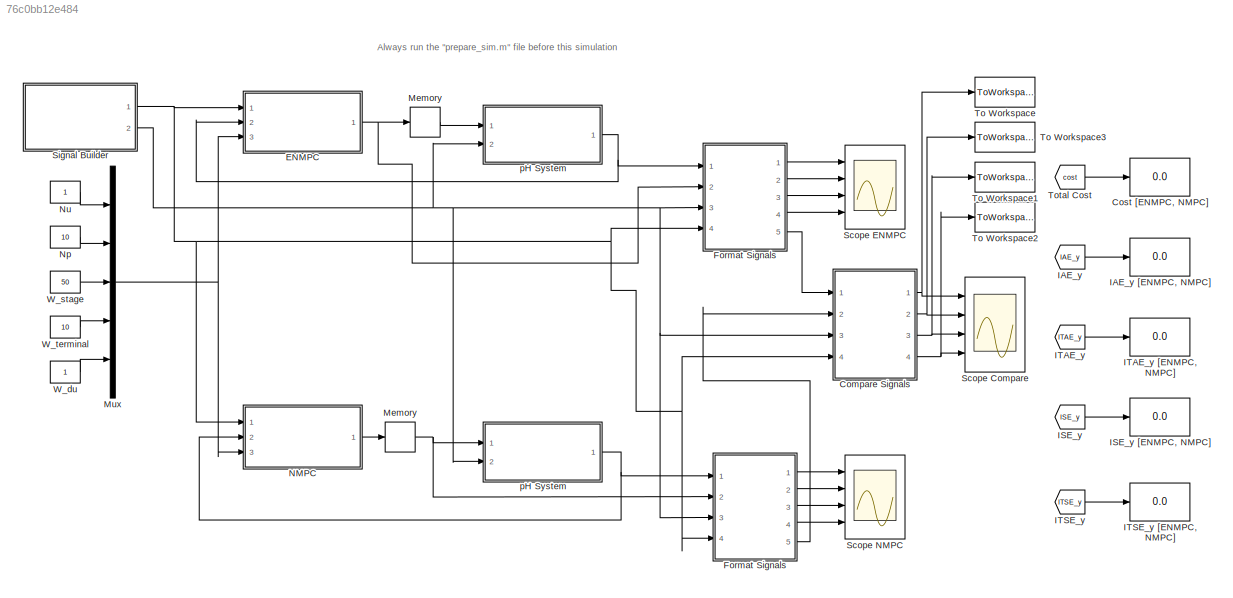
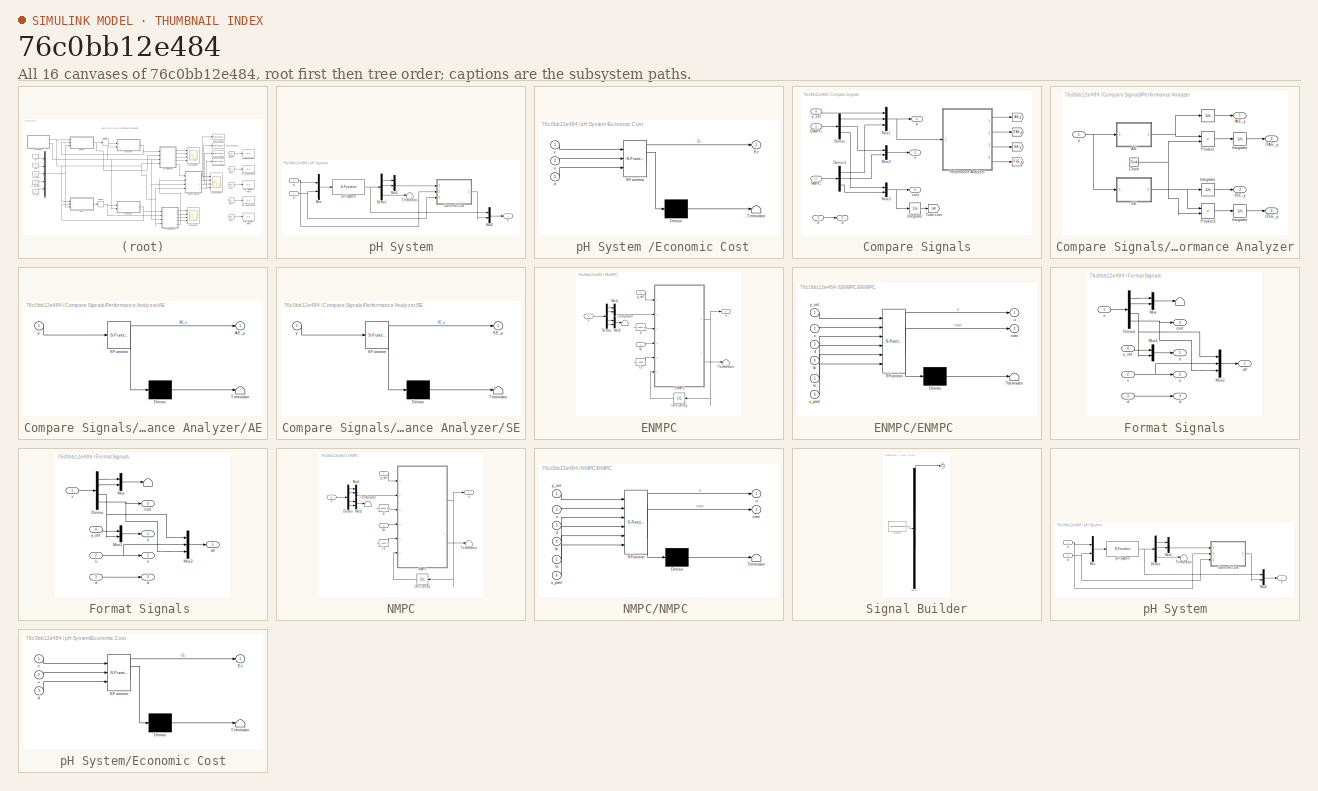
[diagram: thumbnail index - all 16 canvases of the model, root first then tree order]
MODEL slx_76c0bb12e484
KIND model
CONFIG AbsTol = auto
CONFIG EnableMultiTasking = off
CONFIG FixedStep = auto
CONFIG MaxStep = auto
CONFIG MinStep = auto
CONFIG RelTol = 1e-3
CONFIG SampleTimeConstraint = Unconstrained
CONFIG Solver = VariableStepAuto
CONFIG SolverName = VariableStepAuto
CONFIG StartTime = 0.0
CONFIG StopTime = 600
BLOCK [Display]  Cost [ENMPC, NMPC]
  Decimation = 1
  Ports = [1]
BLOCK [From]  IAE_y 
  GotoTag = IAE_y
  TagVisibility = global
BLOCK [From]  ISE_y
  GotoTag = ISE_y
  TagVisibility = global
BLOCK [From]  ITAE_y
  GotoTag = ITAE_y
  TagVisibility = global
BLOCK [From]  ITSE_y
  GotoTag = ITSE_y
  TagVisibility = global
BLOCK [Memory]  Memory 
  InitialCondition = pH_const.u_0
BLOCK [From]  Total Cost
  GotoTag = cost
  TagVisibility = global
BLOCK [SubSystem]  pH System 
  Ports = [2, 1]
  RequestExecContextInheritance = off
BLOCK [Demux]  pH System /Demux
  DisplayOption = bar
  Outputs = 3
  Ports = [1, 3]
BLOCK [SubSystem]  pH System /Economic Cost
  ErrorFcn = Stateflow.Translate.translate
  PermitHierarchicalResolution = ExplicitOnly
  Ports = [3, 1]
  RequestExecContextInheritance = off
  SFBlockType = MATLAB Function
  TreatAsAtomicUnit = on
BLOCK [Demux]  pH System /Economic Cost/ Demux 
  Outputs = 1
  Ports = [1, 1]
BLOCK [S-Function]  pH System /Economic Cost/ SFunction 
  EnableBusSupport = off
  FunctionName = sf_sfun
  PortCounts = [3 2]
  Ports = [3, 2]
  SFcnIsStateOwnerBlock = off
  SFunctionDeploymentMode = off
  Tag = Stateflow S-Function pH_control_loops 6
BLOCK [Terminator]  pH System /Economic Cost/ Terminator 
BLOCK [Outport]  pH System /Economic Cost/Ec
  IconDisplay = Port number
BLOCK [Inport]  pH System /Economic Cost/d
  IconDisplay = Port number
  Port = 3
BLOCK [Inport]  pH System /Economic Cost/u
  IconDisplay = Port number
  Port = 2
BLOCK [Inport]  pH System /Economic Cost/x
  IconDisplay = Port number
BLOCK [Mux]  pH System /Mux
  DisplayOption = bar
  Inputs = 2
  Ports = [2, 1]
BLOCK [Mux]  pH System /Mux1
  DisplayOption = bar
  Inputs = 2
  Ports = [2, 1]
BLOCK [Mux]  pH System /Mux2
  DisplayOption = bar
  Inputs = 2
  Ports = [2, 1]
BLOCK [Terminator]  pH System /Terminator
BLOCK [Inport]  pH System /d
  IconDisplay = Port number
  Port = 2
BLOCK [S-Function]  pH System /pH System
  EnableBusSupport = off
  FunctionName = pH_sfun
  Ports = [1, 1]
  SFcnIsStateOwnerBlock = off
  SFunctionDeploymentMode = off
BLOCK [Inport]  pH System /u
  IconDisplay = Port number
BLOCK [Outport]  pH System /x
  IconDisplay = Port number
BLOCK [SubSystem] Compare Signals
  Ports = [4, 4]
  RequestExecContextInheritance = off
BLOCK [Goto] Compare Signals/ 
  GotoTag = ITSE_y
  TagVisibility = global
BLOCK [Inport] Compare Signals/ d 
  IconDisplay = Port number
  Port = 3
BLOCK [Demux] Compare Signals/Demux
  DisplayOption = bar
  Outputs = 3
  Ports = [1, 3]
BLOCK [Demux] Compare Signals/Demux1
  DisplayOption = bar
  Outputs = 3
  Ports = [1, 3]
BLOCK [Inport] Compare Signals/ENMPC
  IconDisplay = Port number
BLOCK [Integrator] Compare Signals/Integrator
  Ports = [1, 1]
BLOCK [Mux] Compare Signals/Mux1
  DisplayOption = bar
  Inputs = 3
  Ports = [3, 1]
BLOCK [Mux] Compare Signals/Mux2
  DisplayOption = bar
  Inputs = 2
  Ports = [2, 1]
BLOCK [Mux] Compare Signals/Mux3
  DisplayOption = bar
  Inputs = 2
  Ports = [2, 1]
BLOCK [Inport] Compare Signals/NMPC
  IconDisplay = Port number
  Port = 2
BLOCK [SubSystem] Compare Signals/Performance Analyzer
  Ports = [1, 4]
  RequestExecContextInheritance = off
BLOCK [Integrator] Compare Signals/Performance Analyzer/   
  Ports = [1, 1]
BLOCK [Integrator] Compare Signals/Performance Analyzer/    Integrator    
  Ports = [1, 1]
BLOCK [Integrator] Compare Signals/Performance Analyzer/   Integrator 
  Ports = [1, 1]
BLOCK [Integrator] Compare Signals/Performance Analyzer/   Integrator  
  Ports = [1, 1]
BLOCK [SubSystem] Compare Signals/Performance Analyzer/AE
  ErrorFcn = Stateflow.Translate.translate
  PermitHierarchicalResolution = ExplicitOnly
  Ports = [1, 1]
  RequestExecContextInheritance = off
  SFBlockType = MATLAB Function
  SystemSampleTime = pH_const.ts
  TreatAsAtomicUnit = on
BLOCK [Demux] Compare Signals/Performance Analyzer/AE/ Demux 
  Outputs = 1
  Ports = [1, 1]
BLOCK [S-Function] Compare Signals/Performance Analyzer/AE/ SFunction 
  EnableBusSupport = off
  FunctionName = sf_sfun
  PortCounts = [1 2]
  Ports = [1, 2]
  SFcnIsStateOwnerBlock = off
  SFunctionDeploymentMode = off
  Tag = Stateflow S-Function pH_control_loops 1
BLOCK [Terminator] Compare Signals/Performance Analyzer/AE/ Terminator 
BLOCK [Outport] Compare Signals/Performance Analyzer/AE/AE_y
  IconDisplay = Port number
BLOCK [Inport] Compare Signals/Performance Analyzer/AE/y
  IconDisplay = Port number
BLOCK [Clock] Compare Signals/Performance Analyzer/Clock
BLOCK [Outport] Compare Signals/Performance Analyzer/IAE_y
  IconDisplay = Port number
BLOCK [Outport] Compare Signals/Performance Analyzer/ISE_y
  IconDisplay = Port number
  Port = 3
BLOCK [Outport] Compare Signals/Performance Analyzer/ITAE_y
  IconDisplay = Port number
  Port = 2
BLOCK [Outport] Compare Signals/Performance Analyzer/ITSE_y
  IconDisplay = Port number
  Port = 4
BLOCK [Product] Compare Signals/Performance Analyzer/Product
  InputSameDT = off
  OutDataTypeStr = Inherit: Inherit via internal rule
  Ports = [2, 1]
  RndMeth = Floor
  SaturateOnIntegerOverflow = off
BLOCK [Product] Compare Signals/Performance Analyzer/Product2
  InputSameDT = off
  OutDataTypeStr = Inherit: Inherit via internal rule
  Ports = [2, 1]
  RndMeth = Floor
  SaturateOnIntegerOverflow = off
BLOCK [SubSystem] Compare Signals/Performance Analyzer/SE
  ErrorFcn = Stateflow.Translate.translate
  PermitHierarchicalResolution = ExplicitOnly
  Ports = [1, 1]
  RequestExecContextInheritance = off
  SFBlockType = MATLAB Function
  SystemSampleTime = pH_const.ts
  TreatAsAtomicUnit = on
BLOCK [Demux] Compare Signals/Performance Analyzer/SE/ Demux 
  Outputs = 1
  Ports = [1, 1]
BLOCK [S-Function] Compare Signals/Performance Analyzer/SE/ SFunction 
  EnableBusSupport = off
  FunctionName = sf_sfun
  PortCounts = [1 2]
  Ports = [1, 2]
  SFcnIsStateOwnerBlock = off
  SFunctionDeploymentMode = off
  Tag = Stateflow S-Function pH_control_loops 3
BLOCK [Terminator] Compare Signals/Performance Analyzer/SE/ Terminator 
BLOCK [Outport] Compare Signals/Performance Analyzer/SE/SE_y
  IconDisplay = Port number
BLOCK [Inport] Compare Signals/Performance Analyzer/SE/y
  IconDisplay = Port number
BLOCK [Inport] Compare Signals/Performance Analyzer/y
  IconDisplay = Port number
BLOCK [Goto] Compare Signals/Total cost
  GotoTag = cost
  TagVisibility = global
BLOCK [Outport] Compare Signals/cost
  IconDisplay = Port number
  Port = 4
BLOCK [Outport] Compare Signals/d
  IconDisplay = Port number
  Port = 3
BLOCK [Outport] Compare Signals/u
  IconDisplay = Port number
  Port = 2
BLOCK [Outport] Compare Signals/y
  IconDisplay = Port number
BLOCK [Inport] Compare Signals/y_set
  IconDisplay = Port number
  Port = 4
BLOCK [SubSystem] ENMPC
  Ports = [3, 1]
  RequestExecContextInheritance = off
BLOCK [Demux] ENMPC/Demux
  DisplayOption = bar
  Ports = [1, 4]
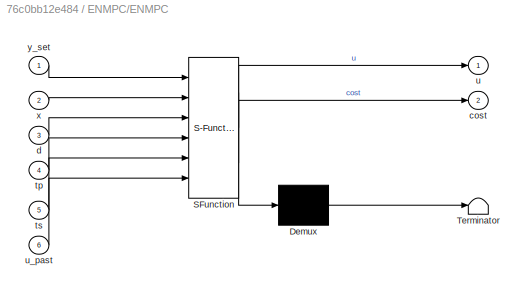
BLOCK [SubSystem] ENMPC/ENMPC 
  ErrorFcn = Stateflow.Translate.translate
  PermitHierarchicalResolution = ExplicitOnly
  Ports = [6, 2]
  RequestExecContextInheritance = off
  SFBlockType = MATLAB Function
  SystemSampleTime = pH_const.ts
  TreatAsAtomicUnit = on
BLOCK [Demux] ENMPC/ENMPC / Demux 
  Outputs = 1
  Ports = [1, 1]
BLOCK [S-Function] ENMPC/ENMPC / SFunction 
  EnableBusSupport = off
  FunctionName = sf_sfun
  PortCounts = [6 3]
  Ports = [6, 3]
  SFcnIsStateOwnerBlock = off
  SFunctionDeploymentMode = off
  Tag = Stateflow S-Function pH_control_loops 2
BLOCK [Terminator] ENMPC/ENMPC / Terminator 
BLOCK [Outport] ENMPC/ENMPC /cost
  IconDisplay = Port number
  Port = 2
BLOCK [Inport] ENMPC/ENMPC /d
  IconDisplay = Port number
  Port = 3
BLOCK [Inport] ENMPC/ENMPC /tp
  IconDisplay = Port number
  Port = 4
BLOCK [Inport] ENMPC/ENMPC /ts
  IconDisplay = Port number
  Port = 5
BLOCK [Outport] ENMPC/ENMPC /u
  IconDisplay = Port number
BLOCK [Inport] ENMPC/ENMPC /u_past
  IconDisplay = Port number
  Port = 6
BLOCK [Inport] ENMPC/ENMPC /x
  IconDisplay = Port number
  Port = 2
BLOCK [Inport] ENMPC/ENMPC /y_set
  IconDisplay = Port number
BLOCK [Mux] ENMPC/Mux1
  DisplayOption = bar
  Inputs = 2
  Ports = [2, 1]
BLOCK [Mux] ENMPC/Mux2
  DisplayOption = bar
  Inputs = 2
  Ports = [2, 1]
BLOCK [Terminator] ENMPC/Terminator
BLOCK [Terminator] ENMPC/Terminator 
BLOCK [Constant] ENMPC/Ts
  Value = pH_const.ts
BLOCK [UnitDelay] ENMPC/Unit Delay
  HasFrameUpgradeWarning = on
  InitialCondition = pH_const.u_0
  SampleTime = pH_const.ts
BLOCK [Constant] ENMPC/d
  Value = pH_const.d_0
BLOCK [Inport] ENMPC/tp
  IconDisplay = Port number
  Port = 3
BLOCK [Outport] ENMPC/u
  IconDisplay = Port number
BLOCK [Inport] ENMPC/x
  IconDisplay = Port number
  Port = 2
BLOCK [Inport] ENMPC/y_set
  IconDisplay = Port number
BLOCK [SubSystem] Format Signals
  Ports = [4, 5]
  RequestExecContextInheritance = off
BLOCK [SubSystem] Format Signals 
  Ports = [4, 5]
  RequestExecContextInheritance = off
BLOCK [Terminator] Format Signals /  
BLOCK [Inport] Format Signals / d 
  IconDisplay = Port number
  Port = 3
BLOCK [Inport] Format Signals / u 
  IconDisplay = Port number
  Port = 2
BLOCK [Demux] Format Signals /Demux
  DisplayOption = bar
  Ports = [1, 4]
BLOCK [Mux] Format Signals /Mux
  DisplayOption = bar
  Inputs = 2
  Ports = [2, 1]
BLOCK [Mux] Format Signals /Mux1
  DisplayOption = bar
  Inputs = 2
  Ports = [2, 1]
BLOCK [Mux] Format Signals /Mux2
  DisplayOption = bar
  Inputs = 3
  Ports = [3, 1]
BLOCK [Outport] Format Signals /all
  IconDisplay = Port number
  Port = 5
BLOCK [Outport] Format Signals /cost
  IconDisplay = Port number
  Port = 4
BLOCK [Outport] Format Signals /d
  IconDisplay = Port number
  Port = 3
BLOCK [Outport] Format Signals /u
  IconDisplay = Port number
  Port = 2
BLOCK [Inport] Format Signals /x
  IconDisplay = Port number
BLOCK [Outport] Format Signals /y
  IconDisplay = Port number
BLOCK [Inport] Format Signals /y_set
  IconDisplay = Port number
  Port = 4
BLOCK [Terminator] Format Signals/  
BLOCK [Inport] Format Signals/ d 
  IconDisplay = Port number
  Port = 3
BLOCK [Inport] Format Signals/ u 
  IconDisplay = Port number
  Port = 2
BLOCK [Demux] Format Signals/Demux
  DisplayOption = bar
  Ports = [1, 4]
BLOCK [Mux] Format Signals/Mux
  DisplayOption = bar
  Inputs = 2
  Ports = [2, 1]
BLOCK [Mux] Format Signals/Mux1
  DisplayOption = bar
  Inputs = 2
  Ports = [2, 1]
BLOCK [Mux] Format Signals/Mux2
  DisplayOption = bar
  Inputs = 3
  Ports = [3, 1]
BLOCK [Outport] Format Signals/all
  IconDisplay = Port number
  Port = 5
BLOCK [Outport] Format Signals/cost
  IconDisplay = Port number
  Port = 4
BLOCK [Outport] Format Signals/d
  IconDisplay = Port number
  Port = 3
BLOCK [Outport] Format Signals/u
  IconDisplay = Port number
  Port = 2
BLOCK [Inport] Format Signals/x
  IconDisplay = Port number
BLOCK [Outport] Format Signals/y
  IconDisplay = Port number
BLOCK [Inport] Format Signals/y_set
  IconDisplay = Port number
  Port = 4
BLOCK [Display] IAE_y [ENMPC, NMPC]
  Decimation = 1
  Ports = [1]
BLOCK [Display] ISE_y [ENMPC, NMPC]
  Decimation = 1
  Ports = [1]
BLOCK [Display] ITAE_y [ENMPC, NMPC]
  Decimation = 1
  Ports = [1]
BLOCK [Display] ITSE_y [ENMPC, NMPC]
  Decimation = 1
  Ports = [1]
BLOCK [Memory] Memory
  InitialCondition = pH_const.u_0
BLOCK [Mux] Mux
  DisplayOption = bar
  Inputs = 5
  Ports = [5, 1]
BLOCK [SubSystem] NMPC
  Ports = [3, 1]
  RequestExecContextInheritance = off
BLOCK [Demux] NMPC/Demux
  DisplayOption = bar
  Ports = [1, 4]
BLOCK [Mux] NMPC/Mux1
  DisplayOption = bar
  Inputs = 2
  Ports = [2, 1]
BLOCK [Mux] NMPC/Mux2
  DisplayOption = bar
  Inputs = 2
  Ports = [2, 1]
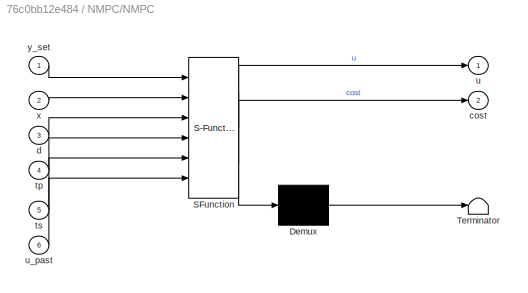
BLOCK [SubSystem] NMPC/NMPC 
  ErrorFcn = Stateflow.Translate.translate
  PermitHierarchicalResolution = ExplicitOnly
  Ports = [6, 2]
  RequestExecContextInheritance = off
  SFBlockType = MATLAB Function
  SystemSampleTime = pH_const.ts
  TreatAsAtomicUnit = on
BLOCK [Demux] NMPC/NMPC / Demux 
  Outputs = 1
  Ports = [1, 1]
BLOCK [S-Function] NMPC/NMPC / SFunction 
  EnableBusSupport = off
  FunctionName = sf_sfun
  PortCounts = [6 3]
  Ports = [6, 3]
  SFcnIsStateOwnerBlock = off
  SFunctionDeploymentMode = off
  Tag = Stateflow S-Function pH_control_loops 4
BLOCK [Terminator] NMPC/NMPC / Terminator 
BLOCK [Outport] NMPC/NMPC /cost
  IconDisplay = Port number
  Port = 2
BLOCK [Inport] NMPC/NMPC /d
  IconDisplay = Port number
  Port = 3
BLOCK [Inport] NMPC/NMPC /tp
  IconDisplay = Port number
  Port = 4
BLOCK [Inport] NMPC/NMPC /ts
  IconDisplay = Port number
  Port = 5
BLOCK [Outport] NMPC/NMPC /u
  IconDisplay = Port number
BLOCK [Inport] NMPC/NMPC /u_past
  IconDisplay = Port number
  Port = 6
BLOCK [Inport] NMPC/NMPC /x
  IconDisplay = Port number
  Port = 2
BLOCK [Inport] NMPC/NMPC /y_set
  IconDisplay = Port number
BLOCK [Terminator] NMPC/Terminator
BLOCK [Terminator] NMPC/Terminator 
BLOCK [Constant] NMPC/Ts
  Value = pH_const.ts
BLOCK [UnitDelay] NMPC/Unit Delay
  HasFrameUpgradeWarning = on
  InitialCondition = pH_const.u_0
  SampleTime = pH_const.ts
BLOCK [Constant] NMPC/d
  Value = pH_const.d_0
BLOCK [Inport] NMPC/tp
  IconDisplay = Port number
  Port = 3
BLOCK [Outport] NMPC/u
  IconDisplay = Port number
BLOCK [Inport] NMPC/x
  IconDisplay = Port number
  Port = 2
BLOCK [Inport] NMPC/y_set
  IconDisplay = Port number
BLOCK [Constant] Np
  Value = 10
BLOCK [Constant] Nu
BLOCK [Scope] Scope Compare
  Floating = off
  NumInputPorts = 4
  Ports = [4]
  ScopeSpecificationString = Simulink.scopes.TimeScopeBlockCfg('CurrentConfiguration', extmgr.ConfigurationSet(extmgr.Configuration('Core','General UI',true),extmgr.Configuration('Core','Source UI',true),extmgr.Configuration('Sources','WiredSimulink',true,'DataLogging',true,'DataLoggingSaveFormat','StructureWithTime','DataLoggingVariableName','pH_data'),extmgr.Configuration('Visuals','Time Domain',true,'TimeAxisLabels','All',...<+4869ch>
BLOCK [Scope] Scope ENMPC
  Floating = off
  NumInputPorts = 4
  Ports = [4]
  ScopeSpecificationString = Simulink.scopes.TimeScopeBlockCfg('CurrentConfiguration', extmgr.ConfigurationSet(extmgr.Configuration('Core','General UI',true),extmgr.Configuration('Core','Source UI',true),extmgr.Configuration('Sources','WiredSimulink',true,'DataLoggingSaveFormat','StructureWithTime','DataLoggingVariableName','pr_data'),extmgr.Configuration('Visuals','Time Domain',true,'TimeAxisLabels','All','SerializedDisplays...<+4590ch>
BLOCK [Scope] Scope NMPC
  Floating = off
  NumInputPorts = 4
  Ports = [4]
  ScopeSpecificationString = Simulink.scopes.TimeScopeBlockCfg('CurrentConfiguration', extmgr.ConfigurationSet(extmgr.Configuration('Core','General UI',true),extmgr.Configuration('Core','Source UI',true),extmgr.Configuration('Sources','WiredSimulink',true,'DataLoggingSaveFormat','StructureWithTime','DataLoggingVariableName','ScopeData2'),extmgr.Configuration('Visuals','Time Domain',true,'TimeAxisLabels','All','SerializedDispl...<+4704ch>
BLOCK [SubSystem] Signal Builder
  ClipboardFcn = sigbuilder_block('clipboard');
  CloseFcn = sigbuilder_block('close');
  ContinueFcn = sigbuilder_block('continue');
  CopyFcn = sigbuilder_block('copy');
  DeleteFcn = sigbuilder_block('delete');
  LoadFcn = sigbuilder_block('load');
  MaskHideContents = on
  ModelCloseFcn = sigbuilder_block('modelClose');
  NameChangeFcn = sigbuilder_block('namechange');
  OpenFcn = sigbuilder_block('open',[184.5 249 640.5 331.5 ]);
  PauseFcn = sigbuilder_block('pause');
  Ports = [0, 2]
  PreSaveFcn = sigbuilder_block('preSave');
  RequestExecContextInheritance = off
  StartFcn = sigbuilder_block('start');
  StopFcn = sigbuilder_block('stop');
  Tag = STV Subsys
BLOCK [Demux] Signal Builder/Demux
  Outputs = 2
  Ports = [1, 2]
  Tag = STV Demux
BLOCK [FromWorkspace] Signal Builder/FromWs
  SampleTime = 0
  Tag = STV FromWs
  VariableName = tuvar
  ZeroCross = on
BLOCK [Outport] Signal Builder/q2
  IconDisplay = Port number
  Port = 2
  Tag = STV Outport
BLOCK [Outport] Signal Builder/y_set
  IconDisplay = Port number
  Tag = STV Outport
BLOCK [ToWorkspace] To Workspace
  FixptAsFi = on
  MaxDataPoints = inf
  Ports = [1]
  SampleTime = -1
  SaveFormat = Structure With Time
  VariableName = y
BLOCK [ToWorkspace] To Workspace1
  FixptAsFi = on
  MaxDataPoints = inf
  Ports = [1]
  SampleTime = -1
  SaveFormat = Structure With Time
  VariableName = d
BLOCK [ToWorkspace] To Workspace2
  FixptAsFi = on
  MaxDataPoints = inf
  Ports = [1]
  SampleTime = -1
  SaveFormat = Structure With Time
  VariableName = c
BLOCK [ToWorkspace] To Workspace3
  FixptAsFi = on
  MaxDataPoints = inf
  Ports = [1]
  SampleTime = -1
  SaveFormat = Structure With Time
  VariableName = u
BLOCK [Constant] W_du
BLOCK [Constant] W_stage
  Value = 50
BLOCK [Constant] W_terminal
  Value = 10
BLOCK [SubSystem] pH System
  Ports = [2, 1]
  RequestExecContextInheritance = off
BLOCK [Demux] pH System/Demux
  DisplayOption = bar
  Outputs = 3
  Ports = [1, 3]
BLOCK [SubSystem] pH System/Economic Cost
  ErrorFcn = Stateflow.Translate.translate
  PermitHierarchicalResolution = ExplicitOnly
  Ports = [3, 1]
  RequestExecContextInheritance = off
  SFBlockType = MATLAB Function
  TreatAsAtomicUnit = on
BLOCK [Demux] pH System/Economic Cost/ Demux 
  Outputs = 1
  Ports = [1, 1]
BLOCK [S-Function] pH System/Economic Cost/ SFunction 
  EnableBusSupport = off
  FunctionName = sf_sfun
  PortCounts = [3 2]
  Ports = [3, 2]
  SFcnIsStateOwnerBlock = off
  SFunctionDeploymentMode = off
  Tag = Stateflow S-Function pH_control_loops 5
BLOCK [Terminator] pH System/Economic Cost/ Terminator 
BLOCK [Outport] pH System/Economic Cost/Ec
  IconDisplay = Port number
BLOCK [Inport] pH System/Economic Cost/d
  IconDisplay = Port number
  Port = 3
BLOCK [Inport] pH System/Economic Cost/u
  IconDisplay = Port number
  Port = 2
BLOCK [Inport] pH System/Economic Cost/x
  IconDisplay = Port number
BLOCK [Mux] pH System/Mux
  DisplayOption = bar
  Inputs = 2
  Ports = [2, 1]
BLOCK [Mux] pH System/Mux1
  DisplayOption = bar
  Inputs = 2
  Ports = [2, 1]
BLOCK [Mux] pH System/Mux2
  DisplayOption = bar
  Inputs = 2
  Ports = [2, 1]
BLOCK [Terminator] pH System/Terminator
BLOCK [Inport] pH System/d
  IconDisplay = Port number
  Port = 2
BLOCK [S-Function] pH System/pH System
  EnableBusSupport = off
  FunctionName = pH_sfun
  Ports = [1, 1]
  SFcnIsStateOwnerBlock = off
  SFunctionDeploymentMode = off
BLOCK [Inport] pH System/u
  IconDisplay = Port number
BLOCK [Outport] pH System/x
  IconDisplay = Port number
ANNOTATION (root): Always run the "prepare_sim.m" file before this simulation
LINE  IAE_y :1 -> IAE_y [ENMPC, NMPC]:1
LINE  ISE_y:1 -> ISE_y [ENMPC, NMPC]:1
LINE  ITAE_y:1 -> ITAE_y [ENMPC, NMPC]:1
LINE  ITSE_y:1 -> ITSE_y [ENMPC, NMPC]:1
NET  Memory :1 ->  pH System :1, Format Signals :2
LINE  Total Cost:1 ->  Cost [ENMPC, NMPC]:1
LINE  pH System /Demux:1 ->  pH System /Mux1:1
LINE  pH System /Demux:2 ->  pH System /Mux1:2
LINE  pH System /Demux:3 ->  pH System /Terminator:1
LINE  pH System /Economic Cost:1 ->  pH System /Mux2:2
LINE  pH System /Mux1:1 ->  pH System /Economic Cost:1
LINE  pH System /Mux2:1 ->  pH System /x:1
LINE  pH System /Mux:1 ->  pH System /pH System:1
NET  pH System /d:1 ->  pH System /Economic Cost:3,  pH System /Mux:2
NET  pH System /pH System:1 ->  pH System /Demux:1,  pH System /Mux2:1
NET  pH System /u:1 ->  pH System /Economic Cost:2,  pH System /Mux:1
NET  pH System :1 -> Format Signals :1, NMPC:2
LINE Compare Signals/ d :1 -> Compare Signals/d:1
LINE Compare Signals/Demux1:1 -> Compare Signals/Mux1:3
LINE Compare Signals/Demux1:2 -> Compare Signals/Mux2:2
LINE Compare Signals/Demux1:3 -> Compare Signals/Mux3:2
LINE Compare Signals/Demux:1 -> Compare Signals/Mux1:2
LINE Compare Signals/Demux:2 -> Compare Signals/Mux2:1
LINE Compare Signals/Demux:3 -> Compare Signals/Mux3:1
LINE Compare Signals/ENMPC:1 -> Compare Signals/Demux:1
LINE Compare Signals/Integrator:1 -> Compare Signals/Total cost:1
NET Compare Signals/Mux1:1 -> Compare Signals/Performance Analyzer:1, Compare Signals/y:1
LINE Compare Signals/Mux2:1 -> Compare Signals/u:1
NET Compare Signals/Mux3:1 -> Compare Signals/Integrator:1, Compare Signals/cost:1
LINE Compare Signals/NMPC:1 -> Compare Signals/Demux1:1
LINE Compare Signals/Performance Analyzer/    Integrator    :1 -> Compare Signals/Performance Analyzer/ISE_y:1
LINE Compare Signals/Performance Analyzer/   :1 -> Compare Signals/Performance Analyzer/IAE_y:1
LINE Compare Signals/Performance Analyzer/   Integrator  :1 -> Compare Signals/Performance Analyzer/ITSE_y:1
LINE Compare Signals/Performance Analyzer/   Integrator :1 -> Compare Signals/Performance Analyzer/ITAE_y:1
NET Compare Signals/Performance Analyzer/AE:1 -> Compare Signals/Performance Analyzer/   :1, Compare Signals/Performance Analyzer/Product:1
NET Compare Signals/Performance Analyzer/Clock:1 -> Compare Signals/Performance Analyzer/Product2:2, Compare Signals/Performance Analyzer/Product:2
LINE Compare Signals/Performance Analyzer/Product2:1 -> Compare Signals/Performance Analyzer/   Integrator  :1
LINE Compare Signals/Performance Analyzer/Product:1 -> Compare Signals/Performance Analyzer/   Integrator :1
NET Compare Signals/Performance Analyzer/SE:1 -> Compare Signals/Performance Analyzer/    Integrator    :1, Compare Signals/Performance Analyzer/Product2:1
NET Compare Signals/Performance Analyzer/y:1 -> Compare Signals/Performance Analyzer/AE:1, Compare Signals/Performance Analyzer/SE:1
LINE Compare Signals/Performance Analyzer:1 -> Compare Signals/ :1
LINE Compare Signals/Performance Analyzer:2 -> Compare Signals/ :1
LINE Compare Signals/Performance Analyzer:3 -> Compare Signals/ :1
LINE Compare Signals/Performance Analyzer:4 -> Compare Signals/ :1
LINE Compare Signals/y_set:1 -> Compare Signals/Mux1:1
NET Compare Signals:1 -> Scope Compare:1, To Workspace:1
NET Compare Signals:2 -> Scope Compare:2, To Workspace3:1
NET Compare Signals:3 -> Scope Compare:3, To Workspace1:1
NET Compare Signals:4 -> Scope Compare:4, To Workspace2:1
LINE ENMPC/Demux:1 -> ENMPC/Mux1:1
LINE ENMPC/Demux:2 -> ENMPC/Mux1:2
LINE ENMPC/Demux:3 -> ENMPC/Mux2:1
LINE ENMPC/Demux:4 -> ENMPC/Mux2:2
NET ENMPC/ENMPC :1 -> ENMPC/Unit Delay:1, ENMPC/u:1
LINE ENMPC/ENMPC :2 -> ENMPC/Terminator :1
LINE ENMPC/Mux1:1 -> ENMPC/ENMPC :2
LINE ENMPC/Mux2:1 -> ENMPC/Terminator:1
LINE ENMPC/Ts:1 -> ENMPC/ENMPC :5
LINE ENMPC/Unit Delay:1 -> ENMPC/ENMPC :6
LINE ENMPC/d:1 -> ENMPC/ENMPC :3
LINE ENMPC/tp:1 -> ENMPC/ENMPC :4
LINE ENMPC/x:1 -> ENMPC/Demux:1
LINE ENMPC/y_set:1 -> ENMPC/ENMPC :1
NET ENMPC:1 -> Format Signals:2, Memory:1
LINE Format Signals / d :1 -> Format Signals /d:1
NET Format Signals / u :1 -> Format Signals /Mux2:2, Format Signals /u:1
LINE Format Signals /Demux:1 -> Format Signals /Mux:1
LINE Format Signals /Demux:2 -> Format Signals /Mux:2
NET Format Signals /Demux:3 -> Format Signals /Mux1:2, Format Signals /Mux2:1
NET Format Signals /Demux:4 -> Format Signals /Mux2:3, Format Signals /cost:1
LINE Format Signals /Mux1:1 -> Format Signals /y:1
LINE Format Signals /Mux2:1 -> Format Signals /all:1
LINE Format Signals /Mux:1 -> Format Signals /  :1
LINE Format Signals /x:1 -> Format Signals /Demux:1
LINE Format Signals /y_set:1 -> Format Signals /Mux1:1
LINE Format Signals :1 -> Scope NMPC:1
LINE Format Signals :2 -> Scope NMPC:2
LINE Format Signals :3 -> Scope NMPC:3
LINE Format Signals :4 -> Scope NMPC:4
LINE Format Signals :5 -> Compare Signals:2
LINE Format Signals/ d :1 -> Format Signals/d:1
NET Format Signals/ u :1 -> Format Signals/Mux2:2, Format Signals/u:1
LINE Format Signals/Demux:1 -> Format Signals/Mux:1
LINE Format Signals/Demux:2 -> Format Signals/Mux:2
NET Format Signals/Demux:3 -> Format Signals/Mux1:2, Format Signals/Mux2:1
NET Format Signals/Demux:4 -> Format Signals/Mux2:3, Format Signals/cost:1
LINE Format Signals/Mux1:1 -> Format Signals/y:1
LINE Format Signals/Mux2:1 -> Format Signals/all:1
LINE Format Signals/Mux:1 -> Format Signals/  :1
LINE Format Signals/x:1 -> Format Signals/Demux:1
LINE Format Signals/y_set:1 -> Format Signals/Mux1:1
LINE Format Signals:1 -> Scope ENMPC:1
LINE Format Signals:2 -> Scope ENMPC:2
LINE Format Signals:3 -> Scope ENMPC:3
LINE Format Signals:4 -> Scope ENMPC:4
LINE Format Signals:5 -> Compare Signals:1
LINE Memory:1 -> pH System:1
NET Mux:1 -> ENMPC:3, NMPC:3
LINE NMPC/Demux:1 -> NMPC/Mux1:1
LINE NMPC/Demux:2 -> NMPC/Mux1:2
LINE NMPC/Demux:3 -> NMPC/Mux2:1
LINE NMPC/Demux:4 -> NMPC/Mux2:2
LINE NMPC/Mux1:1 -> NMPC/NMPC :2
LINE NMPC/Mux2:1 -> NMPC/Terminator :1
NET NMPC/NMPC :1 -> NMPC/Unit Delay:1, NMPC/u:1
LINE NMPC/NMPC :2 -> NMPC/Terminator:1
LINE NMPC/Ts:1 -> NMPC/NMPC :5
LINE NMPC/Unit Delay:1 -> NMPC/NMPC :6
LINE NMPC/d:1 -> NMPC/NMPC :3
LINE NMPC/tp:1 -> NMPC/NMPC :4
LINE NMPC/x:1 -> NMPC/Demux:1
LINE NMPC/y_set:1 -> NMPC/NMPC :1
LINE NMPC:1 ->  Memory :1
LINE Np:1 -> Mux:2
LINE Nu:1 -> Mux:1
NET Signal Builder:1 -> Compare Signals:4, ENMPC:1, Format Signals :4, Format Signals:4, NMPC:1
NET Signal Builder:2 ->  pH System :2, Compare Signals:3, Format Signals :3, Format Signals:3, pH System:2
LINE W_du:1 -> Mux:5
LINE W_stage:1 -> Mux:3
LINE W_terminal:1 -> Mux:4
LINE pH System/Demux:1 -> pH System/Mux1:1
LINE pH System/Demux:2 -> pH System/Mux1:2
LINE pH System/Demux:3 -> pH System/Terminator:1
LINE pH System/Economic Cost:1 -> pH System/Mux2:2
LINE pH System/Mux1:1 -> pH System/Economic Cost:1
LINE pH System/Mux2:1 -> pH System/x:1
LINE pH System/Mux:1 -> pH System/pH System:1
NET pH System/d:1 -> pH System/Economic Cost:3, pH System/Mux:2
NET pH System/pH System:1 -> pH System/Demux:1, pH System/Mux2:1
NET pH System/u:1 -> pH System/Economic Cost:2, pH System/Mux:1
NET pH System:1 -> ENMPC:2, Format Signals:1
note: NET lines group one-source signal fan-out (src -> all destinations, sorted); 1:1 wires keep LINE
CHART Compare Signals/Performance Analyzer/AE states=1 transitions=1
  STATE_LABEL 'eML_blk_kernel()'
  STATE_LABEL 'SCRIPT:\nfunction AE_y = AE(y)\n    y_set = y(1);\n    y_ENMPC = y(2);\n    y_NMPC = y(3);\n    AE_y = [abs(y_ENMPC - y_set);abs(y_NMPC - y_set)];\nend\n'
CHART ENMPC/ENMPC
 states=1 transitions=1
  STATE_LABEL 'eML_blk_kernel()'
  STATE_LABEL "SCRIPT:\nfunction [u, cost] = enmpc(y_set,x,d,tp,ts,u_past)\n    u = u_past; cost = 0;\n    coder.extrinsic('get_control_input');\n    [u,cost] = get_control_input(y_set,x,u_past,d,tp,1,ts);\nend"
CHART Compare Signals/Performance Analyzer/SE states=1 transitions=1
  STATE_LABEL 'eML_blk_kernel()'
  STATE_LABEL 'SCRIPT:\nfunction SE_y = SE(y)\n    y_set = y(1);\n    y_ENMPC = y(2);\n    y_NMPC = y(3);\n    SE_y = [(y_ENMPC - y_set)^2;(y_NMPC - y_set)^2];\nend\n'
CHART NMPC/NMPC
 states=1 transitions=1
  STATE_LABEL 'eML_blk_kernel()'
  STATE_LABEL "SCRIPT:\nfunction [u, cost] = nmpc(y_set,x,d,tp,ts,u_past)\n    u = u_past; cost = 0;\n    coder.extrinsic('get_control_input');\n    [u,cost] = get_control_input(y_set,x,u_past,d,tp,2,ts);\nend"
CHART pH System/Economic Cost states=1 transitions=1
  STATE_LABEL 'eML_blk_kernel()'
  STATE_LABEL "SCRIPT:\nfunction Ec = cost(x,u,d)\n    Ec = 0;\n    coder.extrinsic('ode_set');\n    [~,~,Ec] = ode_set(x,u,d);\nend\n"
CHART  pH System /Economic Cost states=1 transitions=1
  STATE_LABEL 'eML_blk_kernel()'
  STATE_LABEL "SCRIPT:\nfunction Ec = cost(x,u,d)\n    Ec = 0;\n    coder.extrinsic('ode_set');\n    [~,~,Ec] = ode_set(x,u,d);\nend\n"
